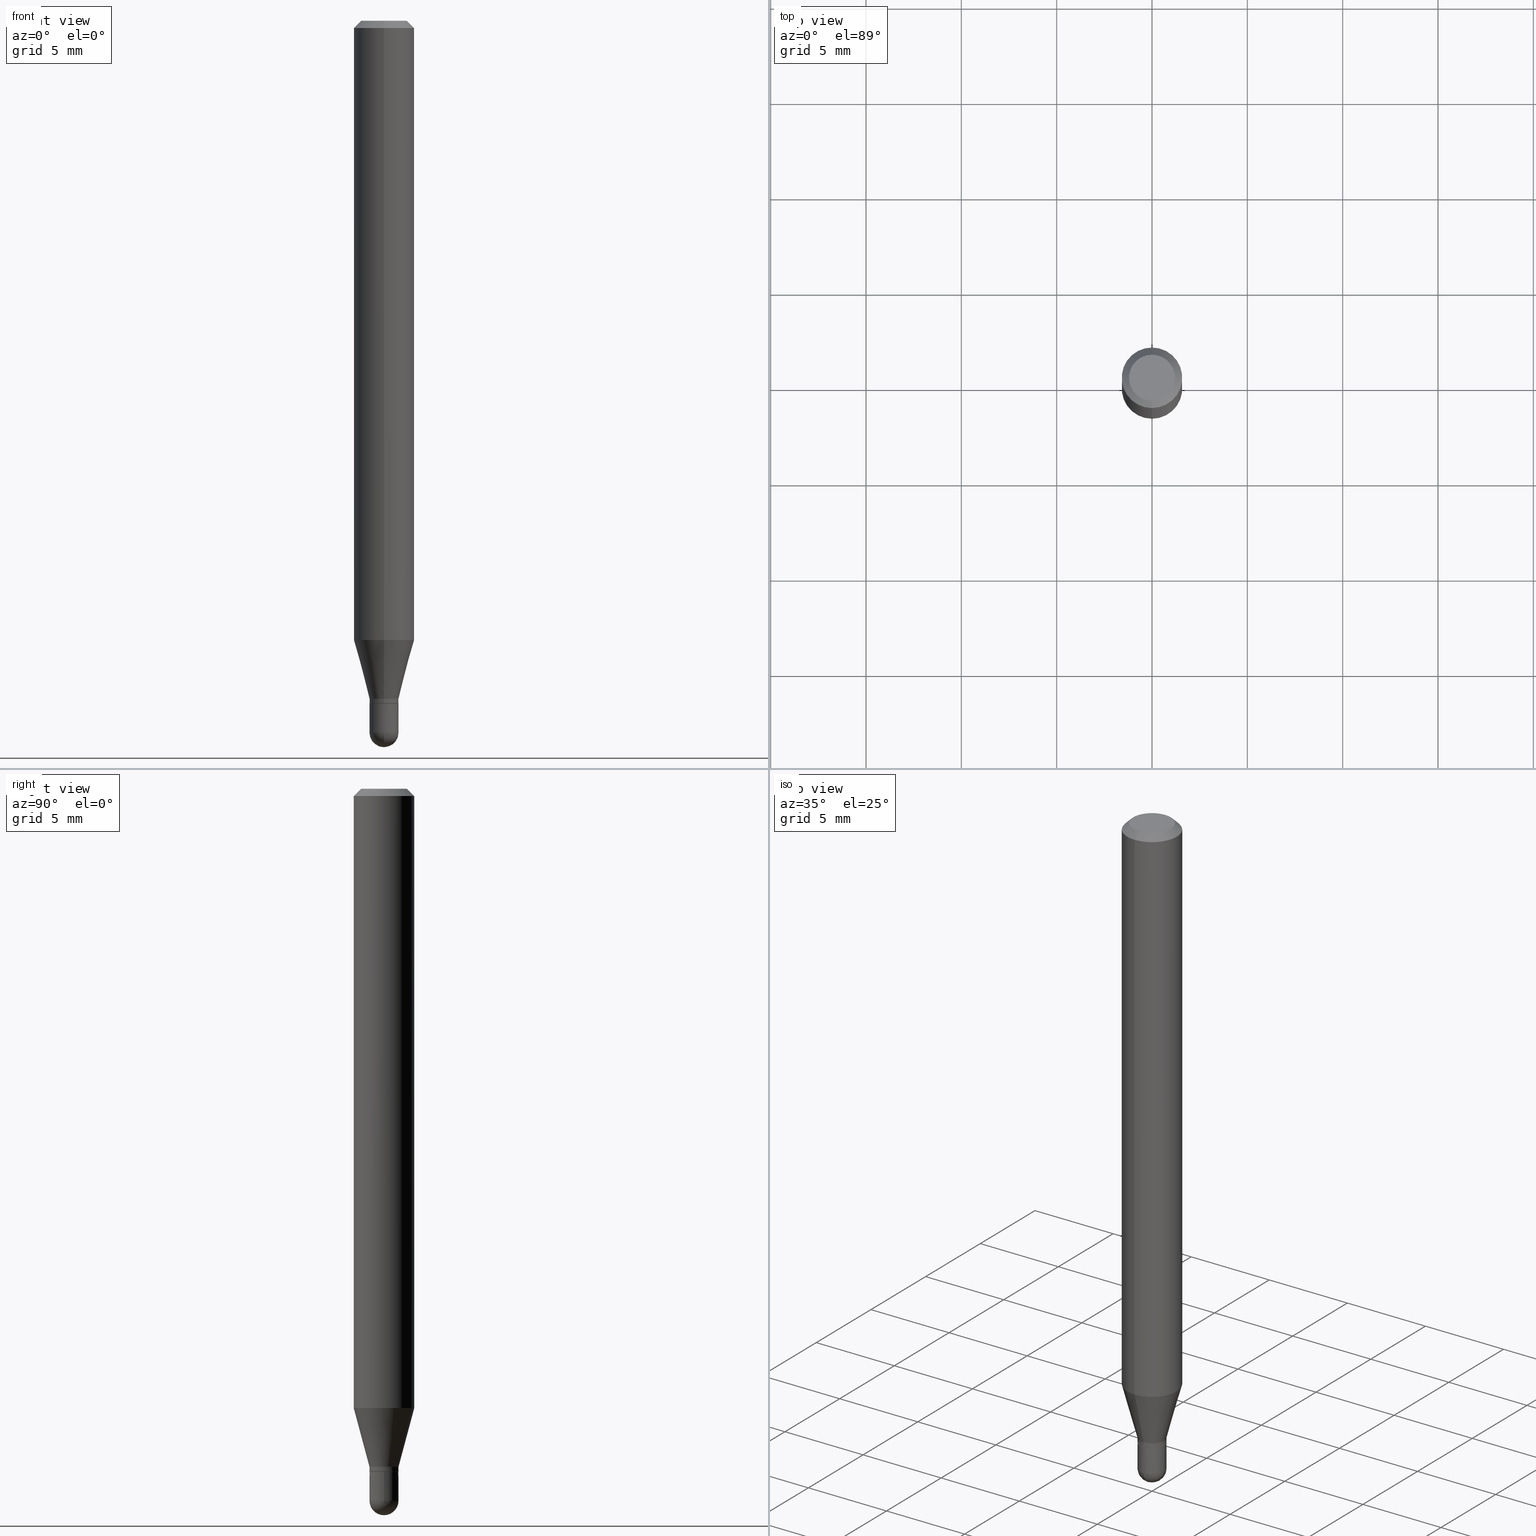
[diagram: canonical four-view strip — front | top / right | iso, engineering-drawing reading convention]
A machine part, canonical four-view strip (front | top / right | iso — engineering-drawing reading convention). The complete STEP part file that produces these views, byte-faithful:
ISO-10303-21;
HEADER;
FILE_DESCRIPTION (( 'STEP AP203' ),
    '1' );
FILE_NAME ('00795.STEP',
    '2024-03-07T18:23:55',
    ( '' ),
    ( '' ),
    'SwSTEP 2.0',
    'SolidWorks 2023',
    '' );
FILE_SCHEMA (( 'CONFIG_CONTROL_DESIGN' ));
ENDSEC;

DATA;
#1 = CIRCLE ( 'NONE', #76, 0.02999999999999992256 ) ;
#2 = AXIS2_PLACEMENT_3D ( 'NONE', #181, #137, #132 ) ;
#3 = CARTESIAN_POINT ( 'NONE',  ( -0.02999999999999999889, -4.814570307206100404E-15, -1.410000000000000364 ) ) ;
#4 = CARTESIAN_POINT ( 'NONE',  ( 2.113864638886639880E-16, 0.02949999999999507877, -1.410000000000000364 ) ) ;
#5 = PRODUCT_RELATED_PRODUCT_CATEGORY ( 'detail', '', ( #107 ) ) ;
#6 = ORIENTED_EDGE ( 'NONE', *, *, #191, .F. ) ;
#7 =( CONVERSION_BASED_UNIT ( 'INCH', #80 ) LENGTH_UNIT ( ) NAMED_UNIT ( #18 ) );
#8 = CARTESIAN_POINT ( 'NONE',  ( 3.286260152890799572E-16, 0.02999999999999531167, -1.400000000000000133 ) ) ;
#9 = CARTESIAN_POINT ( 'NONE',  ( 3.448111016721043229E-29, -4.922988687768836490E-15, -1.410000000000000364 ) ) ;
#10 = ADVANCED_FACE ( 'NONE', ( #254 ), #400, .T. ) ;
#11 = VECTOR ( 'NONE', #407, 39.37007874015748143 ) ;
#12 = CARTESIAN_POINT ( 'NONE',  ( 0.02999999999999999889, -5.132477568099424807E-15, -1.410000000000000364 ) ) ;
#13 = CC_DESIGN_DATE_AND_TIME_ASSIGNMENT ( #176, #261, ( #89 ) ) ;
#14 = APPROVAL_DATE_TIME ( #491, #106 ) ;
#15 = CYLINDRICAL_SURFACE ( 'NONE', #111, 0.03000000000000006134 ) ;
#16 = ORIENTED_EDGE ( 'NONE', *, *, #90, .T. ) ;
#17 = ADVANCED_BREP_SHAPE_REPRESENTATION ( '00795', ( #65, #244, #196 ), #317 ) ;
#18 = DIMENSIONAL_EXPONENTS ( 1.000000000000000000, 0.000000000000000000, 0.000000000000000000, 0.000000000000000000, 0.000000000000000000, 0.000000000000000000, 0.000000000000000000 ) ;
#19 = CARTESIAN_POINT ( 'NONE',  ( 3.668194037325136413E-31, -5.237235143022838535E-17, -0.01500000000000000812 ) ) ;
#20 = CIRCLE ( 'NONE', #180, 0.02999999999999997807 ) ;
#21 = PRODUCT_DEFINITION_FORMATION_WITH_SPECIFIED_SOURCE ( 'ANY', '', #107, .NOT_KNOWN. ) ;
#22 = FACE_OUTER_BOUND ( 'NONE', #175, .T. ) ;
#23 = DIRECTION ( 'NONE',  ( -6.982962677686265922E-15, -1.000000000000000000, 4.370956789862821150E-15 ) ) ;
#24 = CARTESIAN_POINT ( 'NONE',  ( 3.446879663739852411E-29, -4.921255289393791831E-15, -1.409500000000000419 ) ) ;
#25 = ORIENTED_EDGE ( 'NONE', *, *, #461, .F. ) ;
#26 = EDGE_CURVE ( 'NONE', #94, #193, #404, .T. ) ;
#27 = AXIS2_PLACEMENT_3D ( 'NONE', #492, #271, #422 ) ;
#28 = ADVANCED_FACE ( 'NONE', ( #512 ), #440, .T. ) ;
#29 = FACE_OUTER_BOUND ( 'NONE', #246, .T. ) ;
#30 = ORIENTED_EDGE ( 'NONE', *, *, #105, .F. ) ;
#31 = DIRECTION ( 'NONE',  ( -6.982962677686265922E-15, -1.000000000000000000, 0.000000000000000000 ) ) ;
#32 = VERTEX_POINT ( 'NONE', #161 ) ;
#33 = DIRECTION ( 'NONE',  ( -2.445468806185136597E-29, 3.491481338843145583E-15, 1.000000000000000000 ) ) ;
#34 = ORIENTED_EDGE ( 'NONE', *, *, #115, .F. ) ;
#35 = CARTESIAN_POINT ( 'NONE',  ( -2.094888803305551107E-16, -0.03000000000000508510, -1.400000000000000133 ) ) ;
#36 = CLOSED_SHELL ( 'NONE', ( #506, #311, #419, #414, #10 ) ) ;
#37 = ORIENTED_EDGE ( 'NONE', *, *, #501, .F. ) ;
#38 = CIRCLE ( 'NONE', #391, 0.02949999999999999845 ) ;
#39 = DIRECTION ( 'NONE',  ( -2.445468806185136597E-29, 3.491481338843145583E-15, 1.000000000000000000 ) ) ;
#40 = DIRECTION ( 'NONE',  ( -2.445468806185136877E-29, 3.491481338843145188E-15, 1.000000000000000000 ) ) ;
#41 = ORIENTED_EDGE ( 'NONE', *, *, #82, .T. ) ;
#42 = EDGE_CURVE ( 'NONE', #144, #75, #230, .T. ) ;
#43 = DATE_AND_TIME ( #357, #335 ) ;
#44 = DIRECTION ( 'NONE',  ( -2.445462691550089435E-29, 3.491490095348556460E-15, 1.000000000000000000 ) ) ;
#45 = VECTOR ( 'NONE', #119, 39.37007874015748143 ) ;
#46 = EDGE_CURVE ( 'NONE', #116, #185, #60, .T. ) ;
#47 = VECTOR ( 'NONE', #186, 39.37007874015748143 ) ;
#48 = APPROVAL_STATUS ( 'not_yet_approved' ) ;
#49 = DIRECTION ( 'NONE',  ( -6.982962677686265922E-15, -1.000000000000000000, 0.000000000000000000 ) ) ;
#50 = CARTESIAN_POINT ( 'NONE',  ( 3.592273646224612654E-29, -5.136151508496865947E-15, -1.470000000000000195 ) ) ;
#51 = DIRECTION ( 'NONE',  ( -6.982962677686266711E-15, -1.000000000000000000, 3.491490095348556460E-15 ) ) ;
#52 = AXIS2_PLACEMENT_3D ( 'NONE', #397, #147, #280 ) ;
#53 = APPROVAL_PERSON_ORGANIZATION ( #413, #149, #300 ) ;
#54 = FACE_OUTER_BOUND ( 'NONE', #458, .T. ) ;
#55 = PERSON_AND_ORGANIZATION ( #328, #287 ) ;
#56 = CARTESIAN_POINT ( 'NONE',  ( 4.364351673553919652E-16, 0.06249999999999995143, -0.01500000000000022669 ) ) ;
#57 = ORIENTED_EDGE ( 'NONE', *, *, #199, .T. ) ;
#58 = DIRECTION ( 'NONE',  ( -6.982962677686265922E-15, -1.000000000000000000, 0.000000000000000000 ) ) ;
#59 = EDGE_CURVE ( 'NONE', #32, #193, #1, .T. ) ;
#60 = CIRCLE ( 'NONE', #286, 0.02999999999999997807 ) ;
#61 = AXIS2_PLACEMENT_3D ( 'NONE', #465, #282, #459 ) ;
#62 = DIRECTION ( 'NONE',  ( 2.445462691550089435E-29, -3.491490095348556460E-15, -1.000000000000000000 ) ) ;
#63 = CYLINDRICAL_SURFACE ( 'NONE', #268, 0.03000000000000006134 ) ;
#64 = VERTEX_POINT ( 'NONE', #242 ) ;
#65 = MANIFOLD_SOLID_BREP ( 'Body-Move/Copy2[1]', #36 ) ;
#66 = CARTESIAN_POINT ( 'NONE',  ( 3.592273646224612654E-29, -5.136151508496865947E-15, -1.470000000000000195 ) ) ;
#67 = ORIENTED_EDGE ( 'NONE', *, *, #342, .F. ) ;
#68 = AXIS2_PLACEMENT_3D ( 'NONE', #156, #326, #475 ) ;
#69 = AXIS2_PLACEMENT_3D ( 'NONE', #170, #305, #453 ) ;
#70 = CC_DESIGN_APPROVAL ( #149, ( #89 ) ) ;
#71 = ORIENTED_EDGE ( 'NONE', *, *, #327, .F. ) ;
#72 = PLANE ( 'NONE',  #52 ) ;
#73 = ORIENTED_EDGE ( 'NONE', *, *, #461, .T. ) ;
#74 = LINE ( 'NONE', #394, #223 ) ;
#75 = VERTEX_POINT ( 'NONE', #8 ) ;
#76 = AXIS2_PLACEMENT_3D ( 'NONE', #206, #211, #49 ) ;
#77 = DIRECTION ( 'NONE',  ( -2.445468806185136877E-29, 3.491481338843145188E-15, 1.000000000000000000 ) ) ;
#78 = DIRECTION ( 'NONE',  ( -6.982962677686265922E-15, -1.000000000000000000, 3.491490095348556460E-15 ) ) ;
#79 = CIRCLE ( 'NONE', #472, 0.03000000000000000583 ) ;
#80 = LENGTH_MEASURE_WITH_UNIT ( LENGTH_MEASURE( 0.02539999999999999897 ), #295 );
#81 = CARTESIAN_POINT ( 'NONE',  ( 3.666920459843935532E-29, -5.239058978463439141E-15, -1.500000000000000222 ) ) ;
#82 = EDGE_CURVE ( 'NONE', #64, #235, #140, .T. ) ;
#83 = PERSON_AND_ORGANIZATION ( #328, #287 ) ;
#84 = DIRECTION ( 'NONE',  ( -2.445462691550089435E-29, 3.491490095348556460E-15, 1.000000000000000000 ) ) ;
#85 = MECHANICAL_CONTEXT ( 'NONE', #234, 'mechanical' ) ;
#86 = LINE ( 'NONE', #406, #247 ) ;
#87 = CIRCLE ( 'NONE', #380, 0.03000000000000000583 ) ;
#88 = AXIS2_PLACEMENT_3D ( 'NONE', #309, #455, #389 ) ;
#89 = SECURITY_CLASSIFICATION ( '', '', #131 ) ;
#90 = EDGE_CURVE ( 'NONE', #235, #64, #434, .T. ) ;
#91 = DIRECTION ( 'NONE',  ( -2.445462691550089435E-29, 3.491490095348556460E-15, 1.000000000000000000 ) ) ;
#92 = LINE ( 'NONE', #488, #382 ) ;
#93 = CARTESIAN_POINT ( 'NONE',  ( 0.000000000000000000, 0.000000000000000000, 0.000000000000000000 ) ) ;
#94 = VERTEX_POINT ( 'NONE', #4 ) ;
#95 = VECTOR ( 'NONE', #40, 39.37007874015748143 ) ;
#96 = APPROVAL_PERSON_ORGANIZATION ( #479, #106, #322 ) ;
#97 = DIRECTION ( 'NONE',  ( -6.982962677686265922E-15, -1.000000000000000000, 0.000000000000000000 ) ) ;
#98 = ORIENTED_EDGE ( 'NONE', *, *, #273, .F. ) ;
#99 = FACE_OUTER_BOUND ( 'NONE', #197, .T. ) ;
#100 = PRODUCT_DEFINITION ( 'UNKNOWN', '', #21, #275 ) ;
#101 = CARTESIAN_POINT ( 'NONE',  ( -0.03000000000000000583, -4.814570307206100404E-15, -1.470000000000000417 ) ) ;
#102 = ORIENTED_EDGE ( 'NONE', *, *, #386, .F. ) ;
#103 = CIRCLE ( 'NONE', #150, 0.03000000000000000583 ) ;
#104 = CARTESIAN_POINT ( 'NONE',  ( 0.03000000000000000583, -5.237222008264718177E-15, -1.470000000000000417 ) ) ;
#105 = EDGE_CURVE ( 'NONE', #498, #217, #134, .T. ) ;
#106 = APPROVAL ( #207, 'UNSPECIFIED' ) ;
#107 = PRODUCT ( '00795', '00795', '', ( #85 ) ) ;
#108 = ORIENTED_EDGE ( 'NONE', *, *, #122, .T. ) ;
#109 = FACE_OUTER_BOUND ( 'NONE', #152, .T. ) ;
#110 = ORIENTED_EDGE ( 'NONE', *, *, #214, .T. ) ;
#111 = AXIS2_PLACEMENT_3D ( 'NONE', #93, #304, #173 ) ;
#112 = CARTESIAN_POINT ( 'NONE',  ( 2.131628207280656699E-16, 0.02999999999999530820, -1.400000000000000133 ) ) ;
#113 = ORIENTED_EDGE ( 'NONE', *, *, #446, .F. ) ;
#114 = CARTESIAN_POINT ( 'NONE',  ( 2.094888803306238403E-16, 0.02999999999999485717, -1.470000000000000417 ) ) ;
#115 = EDGE_CURVE ( 'NONE', #217, #498, #204, .T. ) ;
#116 = VERTEX_POINT ( 'NONE', #81 ) ;
#117 = ORIENTED_EDGE ( 'NONE', *, *, #42, .T. ) ;
#118 = CARTESIAN_POINT ( 'NONE',  ( 3.594839145092151380E-29, -5.132477568099425596E-15, -1.470000000000000417 ) ) ;
#119 = DIRECTION ( 'NONE',  ( 5.024295867788190974E-15, 0.7071067811865681119, 0.7071067811865270336 ) ) ;
#120 = EDGE_CURVE ( 'NONE', #75, #144, #278, .T. ) ;
#121 = CC_DESIGN_APPROVAL ( #106, ( #21 ) ) ;
#122 = EDGE_CURVE ( 'NONE', #32, #144, #86, .T. ) ;
#123 = ORIENTED_EDGE ( 'NONE', *, *, #26, .T. ) ;
#124 = LINE ( 'NONE', #153, #141 ) ;
#125 = DIRECTION ( 'NONE',  ( 1.000000000000000000, -6.982962677686268288E-15, 0.000000000000000000 ) ) ;
#126 = ORIENTED_EDGE ( 'NONE', *, *, #448, .T. ) ;
#127 = DIRECTION ( 'NONE',  ( 1.000000000000000000, -6.982962677686266711E-15, 0.000000000000000000 ) ) ;
#128 = CIRCLE ( 'NONE', #296, 0.06250000000000000000 ) ;
#129 = VECTOR ( 'NONE', #377, 39.37007874015748143 ) ;
#130 = DIRECTION ( 'NONE',  ( -2.445462691550089435E-29, 3.491490095348556460E-15, 1.000000000000000000 ) ) ;
#131 = SECURITY_CLASSIFICATION_LEVEL ( 'unclassified' ) ;
#132 = DIRECTION ( 'NONE',  ( 6.982962677686265922E-15, 1.000000000000000000, -3.483106191921935554E-15 ) ) ;
#133 = DIRECTION ( 'NONE',  ( -2.445462691550089435E-29, 3.491490095348556460E-15, 1.000000000000000000 ) ) ;
#134 = CIRCLE ( 'NONE', #426, 0.02999999999999999889 ) ;
#135 = EDGE_CURVE ( 'NONE', #229, #185, #87, .T. ) ;
#136 = CARTESIAN_POINT ( 'NONE',  ( 3.448102395085626415E-29, -4.923001034441466300E-15, -1.410000000000000364 ) ) ;
#137 = DIRECTION ( 'NONE',  ( 2.445462691550089435E-29, -3.491490095348556460E-15, -1.000000000000000000 ) ) ;
#138 = DIRECTION ( 'NONE',  ( 6.982962677686265922E-15, 1.000000000000000000, 0.000000000000000000 ) ) ;
#139 = VERTEX_POINT ( 'NONE', #243 ) ;
#140 = CIRCLE ( 'NONE', #362, 0.06250000000000000000 ) ;
#141 = VECTOR ( 'NONE', #77, 39.37007874015748143 ) ;
#142 = VECTOR ( 'NONE', #410, 39.37007874015748143 ) ;
#143 = LINE ( 'NONE', #457, #95 ) ;
#144 = VERTEX_POINT ( 'NONE', #334 ) ;
#145 = CARTESIAN_POINT ( 'NONE',  ( -3.773273898774340269E-16, -0.04749999999999999362, 1.569858758712323224E-16 ) ) ;
#146 = EDGE_LOOP ( 'NONE', ( #6, #471, #108, #430 ) ) ;
#147 = DIRECTION ( 'NONE',  ( -2.445462691550089155E-29, 3.491490095348556460E-15, 1.000000000000000000 ) ) ;
#148 = ORIENTED_EDGE ( 'NONE', *, *, #396, .F. ) ;
#149 = APPROVAL ( #218, 'UNSPECIFIED' ) ;
#150 = AXIS2_PLACEMENT_3D ( 'NONE', #350, #33, #352 ) ;
#151 = CARTESIAN_POINT ( 'NONE',  ( -2.059973989917103533E-16, -0.02950000000000492159, -1.410000000000000364 ) ) ;
#152 = EDGE_LOOP ( 'NONE', ( #187, #460 ) ) ;
#153 = CARTESIAN_POINT ( 'NONE',  ( -0.03000000000000000583, 2.131628207280300972E-16, -1.475680527076471882E-30 ) ) ;
#154 = ORIENTED_EDGE ( 'NONE', *, *, #386, .T. ) ;
#155 = DATE_TIME_ROLE ( 'creation_date' ) ;
#156 = CARTESIAN_POINT ( 'NONE',  ( 3.423647768170125602E-29, -4.888086133487979280E-15, -1.400000000000000133 ) ) ;
#157 = EDGE_CURVE ( 'NONE', #139, #237, #128, .T. ) ;
#158 = AXIS2_PLACEMENT_3D ( 'NONE', #510, #91, #78 ) ;
#159 = DIRECTION ( 'NONE',  ( 0.000000000000000000, 0.000000000000000000, 1.000000000000000000 ) ) ;
#160 = CONICAL_SURFACE ( 'NONE', #420, 0.06250000000000000000, 0.7853981633974483900 ) ;
#161 = CARTESIAN_POINT ( 'NONE',  ( -2.094888803305537056E-16, -0.03000000000000494632, -1.409500000000000419 ) ) ;
#162 = DIRECTION ( 'NONE',  ( -7.105427357601001070E-15, -1.000000000000000000, 0.000000000000000000 ) ) ;
#163 = CALENDAR_DATE ( 2024, 7, 3 ) ;
#164 = DIRECTION ( 'NONE',  ( -2.445462691550089435E-29, 3.491490095348556460E-15, 1.000000000000000000 ) ) ;
#165 = COORDINATED_UNIVERSAL_TIME_OFFSET ( 5, 0, .BEHIND. ) ;
#166 = ADVANCED_FACE ( 'NONE', ( #182 ), #249, .T. ) ;
#167 = DIRECTION ( 'NONE',  ( -6.982962677686265922E-15, -1.000000000000000000, 0.000000000000000000 ) ) ;
#168 = AXIS2_PLACEMENT_3D ( 'NONE', #208, #402, #290 ) ;
#169 = CONICAL_SURFACE ( 'NONE', #464, 0.03000000000000019665, 0.2617993877991510177 ) ;
#170 = CARTESIAN_POINT ( 'NONE',  ( 0.000000000000000000, 0.000000000000000000, 0.000000000000000000 ) ) ;
#171 = DATE_AND_TIME ( #375, #324 ) ;
#172 = EDGE_CURVE ( 'NONE', #94, #424, #38, .T. ) ;
#173 = DIRECTION ( 'NONE',  ( -6.982962677686265922E-15, -1.000000000000000000, 3.491490095348556460E-15 ) ) ;
#174 = CC_DESIGN_PERSON_AND_ORGANIZATION_ASSIGNMENT ( #55, #442, ( #89 ) ) ;
#175 = EDGE_LOOP ( 'NONE', ( #281, #384, #41, #408 ) ) ;
#176 = DATE_AND_TIME ( #337, #259 ) ;
#177 = LINE ( 'NONE', #302, #142 ) ;
#178 = ORIENTED_EDGE ( 'NONE', *, *, #385, .T. ) ;
#179 = AXIS2_PLACEMENT_3D ( 'NONE', #293, #438, #167 ) ;
#180 = AXIS2_PLACEMENT_3D ( 'NONE', #188, #192, #314 ) ;
#181 = CARTESIAN_POINT ( 'NONE',  ( 3.668194037325136413E-31, -5.237235143022838535E-17, -0.01500000000000000812 ) ) ;
#182 = FACE_OUTER_BOUND ( 'NONE', #478, .T. ) ;
#183 = EDGE_LOOP ( 'NONE', ( #505, #227, #154, #98 ) ) ;
#184 = LINE ( 'NONE', #112, #194 ) ;
#185 = VERTEX_POINT ( 'NONE', #418 ) ;
#186 = DIRECTION ( 'NONE',  ( -2.445462691550089435E-29, 3.491490095348556460E-15, 1.000000000000000000 ) ) ;
#187 = ORIENTED_EDGE ( 'NONE', *, *, #115, .T. ) ;
#188 = CARTESIAN_POINT ( 'NONE',  ( 3.592273646224612654E-29, -5.136151508496865947E-15, -1.470000000000000195 ) ) ;
#189 = EDGE_CURVE ( 'NONE', #390, #353, #363, .T. ) ;
#190 = ORIENTED_EDGE ( 'NONE', *, *, #396, .T. ) ;
#191 = EDGE_CURVE ( 'NONE', #193, #75, #92, .T. ) ;
#192 = DIRECTION ( 'NONE',  ( 1.000000000000000000, -6.982962677686265922E-15, 4.883557194083112340E-29 ) ) ;
#193 = VERTEX_POINT ( 'NONE', #412 ) ;
#194 = VECTOR ( 'NONE', #423, 39.37007874015748143 ) ;
#195 = DIRECTION ( 'NONE',  ( 2.438088387897960049E-29, -3.491481338843145188E-15, -1.000000000000000000 ) ) ;
#196 = AXIS2_PLACEMENT_3D ( 'NONE', #467, #159, #325 ) ;
#197 = EDGE_LOOP ( 'NONE', ( #57, #123, #437, #25 ) ) ;
#198 = COORDINATED_UNIVERSAL_TIME_OFFSET ( 5, 0, .BEHIND. ) ;
#199 = EDGE_CURVE ( 'NONE', #424, #94, #449, .T. ) ;
#200 = DIRECTION ( 'NONE',  ( 1.000000000000000000, -6.982962677686268288E-15, 0.000000000000000000 ) ) ;
#201 = DIRECTION ( 'NONE',  ( 1.000000000000000000, -6.982962677686266711E-15, 0.000000000000000000 ) ) ;
#202 = ORIENTED_EDGE ( 'NONE', *, *, #376, .F. ) ;
#203 = APPLICATION_CONTEXT ( 'configuration controlled 3d designs of mechanical parts and assemblies' ) ;
#204 = CIRCLE ( 'NONE', #489, 0.02999999999999999889 ) ;
#205 = DIRECTION ( 'NONE',  ( -2.445468806185136597E-29, 3.491481338843145583E-15, 1.000000000000000000 ) ) ;
#206 = CARTESIAN_POINT ( 'NONE',  ( 3.446879663739852411E-29, -4.921255289393791831E-15, -1.409500000000000419 ) ) ;
#207 = APPROVAL_STATUS ( 'not_yet_approved' ) ;
#208 = CARTESIAN_POINT ( 'NONE',  ( 0.000000000000000000, 0.000000000000000000, 0.000000000000000000 ) ) ;
#209 = EDGE_CURVE ( 'NONE', #390, #64, #177, .T. ) ;
#210 = APPROVAL_DATE_TIME ( #364, #480 ) ;
#211 = DIRECTION ( 'NONE',  ( -2.445462691550089435E-29, 3.491490095348556460E-15, 1.000000000000000000 ) ) ;
#212 = FACE_OUTER_BOUND ( 'NONE', #333, .T. ) ;
#213 = AXIS2_PLACEMENT_3D ( 'NONE', #255, #451, #219 ) ;
#214 = EDGE_CURVE ( 'NONE', #353, #235, #372, .T. ) ;
#215 = ADVANCED_FACE ( 'NONE', ( #212 ), #316, .T. ) ;
#216 = CYLINDRICAL_SURFACE ( 'NONE', #69, 0.06250000000000000000 ) ;
#217 = VERTEX_POINT ( 'NONE', #12 ) ;
#218 = APPROVAL_STATUS ( 'not_yet_approved' ) ;
#219 = DIRECTION ( 'NONE',  ( 1.000000000000000000, -6.982962677686266711E-15, 0.000000000000000000 ) ) ;
#220 = EDGE_LOOP ( 'NONE', ( #277, #270, #73, #113 ) ) ;
#221 = CARTESIAN_POINT ( 'NONE',  ( 4.440892098500936776E-16, 0.06249999999999551747, -1.278708348754013402 ) ) ;
#222 = ADVANCED_FACE ( 'NONE', ( #99 ), #308, .T. ) ;
#223 = VECTOR ( 'NONE', #312, 39.37007874015748143 ) ;
#224 = DIRECTION ( 'NONE',  ( -2.445462691550089435E-29, 3.491490095348556460E-15, 1.000000000000000000 ) ) ;
#225 = EDGE_LOOP ( 'NONE', ( #432, #190, #468, #67 ) ) ;
#226 = DIRECTION ( 'NONE',  ( -2.445462691550089435E-29, 3.491490095348556460E-15, 1.000000000000000000 ) ) ;
#227 = ORIENTED_EDGE ( 'NONE', *, *, #120, .T. ) ;
#228 = FACE_OUTER_BOUND ( 'NONE', #500, .T. ) ;
#229 = VERTEX_POINT ( 'NONE', #101 ) ;
#230 = CIRCLE ( 'NONE', #68, 0.03000000000000019665 ) ;
#231 = AXIS2_PLACEMENT_3D ( 'NONE', #415, #486, #58 ) ;
#232 = ADVANCED_FACE ( 'NONE', ( #54 ), #216, .T. ) ;
#233 = DIRECTION ( 'NONE',  ( -2.445462691550089435E-29, 3.491490095348556460E-15, 1.000000000000000000 ) ) ;
#234 = APPLICATION_CONTEXT ( 'configuration controlled 3d designs of mechanical parts and assemblies' ) ;
#235 = VERTEX_POINT ( 'NONE', #265 ) ;
#236 = DIRECTION ( 'NONE',  ( -1.807323732225335267E-15, -0.2588190451025189631, 0.9659258262890687563 ) ) ;
#237 = VERTEX_POINT ( 'NONE', #221 ) ;
#238 = CARTESIAN_POINT ( 'NONE',  ( 2.094888803306224597E-16, 0.02999999999999507921, -1.410000000000000364 ) ) ;
#239 = ORIENTED_EDGE ( 'NONE', *, *, #327, .T. ) ;
#240 = CIRCLE ( 'NONE', #88, 0.04749999999999999362 ) ;
#241 = PERSON_AND_ORGANIZATION_ROLE ( 'design_owner' ) ;
#242 = CARTESIAN_POINT ( 'NONE',  ( -4.364351673553912750E-16, -0.06250000000000005551, -0.01499999999999979128 ) ) ;
#243 = CARTESIAN_POINT ( 'NONE',  ( -4.364351673553605094E-16, -0.06250000000000449640, -1.278708348754012736 ) ) ;
#244 = MANIFOLD_SOLID_BREP ( 'Body-Move/Copy2[2]', #405 ) ;
#245 = APPLICATION_PROTOCOL_DEFINITION ( 'international standard', 'config_control_design', 1994, #234 ) ;
#246 = EDGE_LOOP ( 'NONE', ( #202, #263, #435, #398 ) ) ;
#247 = VECTOR ( 'NONE', #164, 39.37007874015748143 ) ;
#248 = FACE_OUTER_BOUND ( 'NONE', #454, .T. ) ;
#249 = CONICAL_SURFACE ( 'NONE', #231, 0.03000000000000019665, 0.2617993877991510177 ) ;
#250 = DIRECTION ( 'NONE',  ( -6.982962677686265922E-15, -1.000000000000000000, 3.483106191921935554E-15 ) ) ;
#251 = CC_DESIGN_APPROVAL ( #480, ( #100 ) ) ;
#252 = ADVANCED_FACE ( 'NONE', ( #336 ), #494, .F. ) ;
#253 =( NAMED_UNIT ( * ) SI_UNIT ( $, .STERADIAN. ) SOLID_ANGLE_UNIT ( ) );
#254 = FACE_OUTER_BOUND ( 'NONE', #388, .T. ) ;
#255 = CARTESIAN_POINT ( 'NONE',  ( 3.594839145092151380E-29, -5.132477568099425596E-15, -1.470000000000000417 ) ) ;
#256 = ADVANCED_FACE ( 'NONE', ( #22 ), #160, .T. ) ;
#257 = CARTESIAN_POINT ( 'NONE',  ( 3.127033560251559026E-29, -4.464597534514144179E-15, -1.278708348754013180 ) ) ;
#258 = AXIS2_PLACEMENT_3D ( 'NONE', #374, #381, #301 ) ;
#259 = LOCAL_TIME ( 13, 23, 55.00000000000000000, #165 ) ;
#260 = ORIENTED_EDGE ( 'NONE', *, *, #342, .T. ) ;
#261 = DATE_TIME_ROLE ( 'classification_date' ) ;
#262 = CARTESIAN_POINT ( 'NONE',  ( 2.166656384593696533E-46, -3.093426586703523285E-32, -8.859903657824081740E-18 ) ) ;
#263 = ORIENTED_EDGE ( 'NONE', *, *, #46, .T. ) ;
#264 = DIRECTION ( 'NONE',  ( -2.445462691550089435E-29, 3.491490095348556460E-15, 1.000000000000000000 ) ) ;
#265 = CARTESIAN_POINT ( 'NONE',  ( 4.440892098500940720E-16, 0.06249999999999995143, -0.01500000000000022669 ) ) ;
#266 = ORIENTED_EDGE ( 'NONE', *, *, #448, .F. ) ;
#267 = ADVANCED_FACE ( 'NONE', ( #298 ), #15, .T. ) ;
#268 = AXIS2_PLACEMENT_3D ( 'NONE', #425, #226, #387 ) ;
#269 = PLANE ( 'NONE',  #354 ) ;
#270 = ORIENTED_EDGE ( 'NONE', *, *, #172, .T. ) ;
#271 = DIRECTION ( 'NONE',  ( -2.445462691550089435E-29, 3.491490095348556460E-15, 1.000000000000000000 ) ) ;
#272 = ORIENTED_EDGE ( 'NONE', *, *, #274, .T. ) ;
#273 = EDGE_CURVE ( 'NONE', #237, #139, #482, .T. ) ;
#274 = EDGE_CURVE ( 'NONE', #360, #229, #490, .T. ) ;
#275 = DESIGN_CONTEXT ( 'detailed design', #203, 'design' ) ;
#276 = DIRECTION ( 'NONE',  ( -1.000000000000000000, 6.982962677686265922E-15, -4.876176775795935793E-29 ) ) ;
#277 = ORIENTED_EDGE ( 'NONE', *, *, #26, .F. ) ;
#278 = CIRCLE ( 'NONE', #179, 0.03000000000000019665 ) ;
#279 = CONICAL_SURFACE ( 'NONE', #27, 0.02949999999999999845, 0.7853981633974739252 ) ;
#280 = DIRECTION ( 'NONE',  ( -6.982962677686265922E-15, -1.000000000000000000, 3.491490095348556460E-15 ) ) ;
#281 = ORIENTED_EDGE ( 'NONE', *, *, #189, .F. ) ;
#282 = DIRECTION ( 'NONE',  ( -1.000000000000000000, 6.982962677686265922E-15, -4.883557194083112340E-29 ) ) ;
#283 = ORIENTED_EDGE ( 'NONE', *, *, #189, .T. ) ;
#284 = PERSON_AND_ORGANIZATION ( #328, #287 ) ;
#285 = ORIENTED_EDGE ( 'NONE', *, *, #172, .F. ) ;
#286 = AXIS2_PLACEMENT_3D ( 'NONE', #50, #288, #162 ) ;
#287 = ORGANIZATION ( 'UNSPECIFIED', 'UNSPECIFIED', '' ) ;
#288 = DIRECTION ( 'NONE',  ( -1.000000000000000000, 7.105427357601001070E-15, -4.926315508542082329E-29 ) ) ;
#289 = APPLICATION_PROTOCOL_DEFINITION ( 'international standard', 'config_control_design', 1994, #203 ) ;
#290 = DIRECTION ( 'NONE',  ( 1.000000000000000000, -6.982962677686266711E-15, 4.876176775795935793E-29 ) ) ;
#291 = PRODUCT_DEFINITION_SHAPE ( 'NONE', 'NONE',  #100 ) ;
#292 = CC_DESIGN_DATE_AND_TIME_ASSIGNMENT ( #43, #155, ( #100 ) ) ;
#293 = CARTESIAN_POINT ( 'NONE',  ( 3.423647768170125602E-29, -4.888086133487979280E-15, -1.400000000000000133 ) ) ;
#294 = ORIENTED_EDGE ( 'NONE', *, *, #122, .F. ) ;
#295 =( LENGTH_UNIT ( ) NAMED_UNIT ( * ) SI_UNIT ( $, .METRE. ) );
#296 = AXIS2_PLACEMENT_3D ( 'NONE', #484, #130, #23 ) ;
#297 = CARTESIAN_POINT ( 'NONE',  ( 2.096101070492640071E-16, 0.02949999999999507877, -1.410000000000000364 ) ) ;
#298 = FACE_OUTER_BOUND ( 'NONE', #146, .T. ) ;
#299 = ADVANCED_FACE ( 'NONE', ( #339 ), #279, .T. ) ;
#300 = APPROVAL_ROLE ( '' ) ;
#301 = DIRECTION ( 'NONE',  ( 6.982962677686265922E-15, 1.000000000000000000, -3.491490095348556460E-15 ) ) ;
#302 = CARTESIAN_POINT ( 'NONE',  ( -4.287811248607203282E-16, -0.06250000000000005551, -0.01499999999999979128 ) ) ;
#303 = AXIS2_PLACEMENT_3D ( 'NONE', #136, #417, #383 ) ;
#304 = DIRECTION ( 'NONE',  ( -2.445462691550089435E-29, 3.491490095348556460E-15, 1.000000000000000000 ) ) ;
#305 = DIRECTION ( 'NONE',  ( -2.445462691550089435E-29, 3.491490095348556460E-15, 1.000000000000000000 ) ) ;
#306 = EDGE_CURVE ( 'NONE', #75, #237, #184, .T. ) ;
#307 = CARTESIAN_POINT ( 'NONE',  ( -4.364351673553916201E-16, -0.06250000000000000000, 2.182181309592847787E-16 ) ) ;
#308 = CONICAL_SURFACE ( 'NONE', #303, 0.02949999999999999845, 0.7853981633974739252 ) ;
#309 = CARTESIAN_POINT ( 'NONE',  ( 2.166656384593696533E-46, -3.093426586703523285E-32, -8.859903657824081740E-18 ) ) ;
#310 = ORIENTED_EDGE ( 'NONE', *, *, #90, .F. ) ;
#311 = ADVANCED_FACE ( 'NONE', ( #29 ), #429, .T. ) ;
#312 = DIRECTION ( 'NONE',  ( -2.445462691550089435E-29, 3.491490095348556460E-15, 1.000000000000000000 ) ) ;
#313 = ORIENTED_EDGE ( 'NONE', *, *, #157, .F. ) ;
#314 = DIRECTION ( 'NONE',  ( 6.982962677686265922E-15, 1.000000000000000000, 0.000000000000000000 ) ) ;
#315 = ORIENTED_EDGE ( 'NONE', *, *, #501, .T. ) ;
#316 = CONICAL_SURFACE ( 'NONE', #2, 0.06250000000000000000, 0.7853981633974483900 ) ;
#317 =( GEOMETRIC_REPRESENTATION_CONTEXT ( 3 ) GLOBAL_UNCERTAINTY_ASSIGNED_CONTEXT ( ( #470 ) ) GLOBAL_UNIT_ASSIGNED_CONTEXT ( ( #7, #320, #253 ) ) REPRESENTATION_CONTEXT ( 'NONE', 'WORKASPACE' ) );
#318 = SPHERICAL_SURFACE ( 'NONE', #61, 0.02999999999999997807 ) ;
#319 = ORIENTED_EDGE ( 'NONE', *, *, #376, .T. ) ;
#320 =( NAMED_UNIT ( * ) PLANE_ANGLE_UNIT ( ) SI_UNIT ( $, .RADIAN. ) );
#321 = ORIENTED_EDGE ( 'NONE', *, *, #306, .T. ) ;
#322 = APPROVAL_ROLE ( '' ) ;
#323 = ORIENTED_EDGE ( 'NONE', *, *, #199, .F. ) ;
#324 = LOCAL_TIME ( 13, 23, 55.00000000000000000, #411 ) ;
#325 = DIRECTION ( 'NONE',  ( 1.000000000000000000, 0.000000000000000000, 0.000000000000000000 ) ) ;
#326 = DIRECTION ( 'NONE',  ( -2.445462691550089435E-29, 3.491490095348556460E-15, 1.000000000000000000 ) ) ;
#327 = EDGE_CURVE ( 'NONE', #395, #360, #103, .T. ) ;
#328 = PERSON ( 'UNSPECIFIED', 'UNSPECIFIED', 'UNSPECIFIED', ('UNSPECIFIED'), ('UNSPECIFIED'), ('UNSPECIFIED') ) ;
#329 = CC_DESIGN_PERSON_AND_ORGANIZATION_ASSIGNMENT ( #403, #399, ( #100 ) ) ;
#330 = DIRECTION ( 'NONE',  ( 1.000000000000000000, -6.982962677686266711E-15, 4.876176775795935793E-29 ) ) ;
#331 = CARTESIAN_POINT ( 'NONE',  ( 3.448111016721043229E-29, -4.922988687768836490E-15, -1.410000000000000364 ) ) ;
#332 = APPROVAL_ROLE ( '' ) ;
#333 = EDGE_LOOP ( 'NONE', ( #351, #508, #110, #16 ) ) ;
#334 = CARTESIAN_POINT ( 'NONE',  ( -2.094888803305551107E-16, -0.03000000000000508510, -1.400000000000000133 ) ) ;
#335 = LOCAL_TIME ( 13, 23, 55.00000000000000000, #198 ) ;
#336 = FACE_OUTER_BOUND ( 'NONE', #463, .T. ) ;
#337 = CALENDAR_DATE ( 2024, 7, 3 ) ;
#338 = DIRECTION ( 'NONE',  ( -2.445462691550089435E-29, 3.491490095348556460E-15, 1.000000000000000000 ) ) ;
#339 = FACE_OUTER_BOUND ( 'NONE', #220, .T. ) ;
#340 = AXIS2_PLACEMENT_3D ( 'NONE', #262, #224, #51 ) ;
#341 = LOCAL_TIME ( 13, 23, 55.00000000000000000, #366 ) ;
#342 = EDGE_CURVE ( 'NONE', #139, #64, #431, .T. ) ;
#343 = DIRECTION ( 'NONE',  ( -6.982962677686265922E-15, -1.000000000000000000, 0.000000000000000000 ) ) ;
#344 = CARTESIAN_POINT ( 'NONE',  ( 3.448102395085626415E-29, -4.923001034441466300E-15, -1.410000000000000364 ) ) ;
#345 = DIRECTION ( 'NONE',  ( -2.445462691550089435E-29, 3.491490095348556460E-15, 1.000000000000000000 ) ) ;
#346 = ORIENTED_EDGE ( 'NONE', *, *, #191, .T. ) ;
#347 = AXIS2_PLACEMENT_3D ( 'NONE', #24, #345, #497 ) ;
#348 = DIRECTION ( 'NONE',  ( -1.000000000000000000, 6.982962677686265922E-15, -4.883557194083112340E-29 ) ) ;
#349 = ORIENTED_EDGE ( 'NONE', *, *, #59, .T. ) ;
#350 = CARTESIAN_POINT ( 'NONE',  ( 3.594839145092151380E-29, -5.132477568099425596E-15, -1.470000000000000417 ) ) ;
#351 = ORIENTED_EDGE ( 'NONE', *, *, #209, .F. ) ;
#352 = DIRECTION ( 'NONE',  ( 1.000000000000000000, -6.982962677686266711E-15, 0.000000000000000000 ) ) ;
#353 = VERTEX_POINT ( 'NONE', #462 ) ;
#354 = AXIS2_PLACEMENT_3D ( 'NONE', #238, #195, #276 ) ;
#355 = FACE_OUTER_BOUND ( 'NONE', #378, .T. ) ;
#356 = ORIENTED_EDGE ( 'NONE', *, *, #273, .T. ) ;
#357 = CALENDAR_DATE ( 2024, 7, 3 ) ;
#358 = DIRECTION ( 'NONE',  ( -2.445468806185136597E-29, 3.491481338843145583E-15, 1.000000000000000000 ) ) ;
#359 = ADVANCED_FACE ( 'NONE', ( #392 ), #169, .T. ) ;
#360 = VERTEX_POINT ( 'NONE', #114 ) ;
#361 = ADVANCED_FACE ( 'NONE', ( #228 ), #72, .F. ) ;
#362 = AXIS2_PLACEMENT_3D ( 'NONE', #481, #44, #250 ) ;
#363 = CIRCLE ( 'NONE', #340, 0.04749999999999999362 ) ;
#364 = DATE_AND_TIME ( #436, #456 ) ;
#365 = DIRECTION ( 'NONE',  ( -6.982962677686265922E-15, -1.000000000000000000, 3.483106191921935554E-15 ) ) ;
#366 = COORDINATED_UNIVERSAL_TIME_OFFSET ( 5, 0, .BEHIND. ) ;
#367 = CARTESIAN_POINT ( 'NONE',  ( 3.594839145092151380E-29, -5.132477568099425596E-15, -1.470000000000000417 ) ) ;
#368 = PERSON_AND_ORGANIZATION ( #328, #287 ) ;
#369 = ORIENTED_EDGE ( 'NONE', *, *, #487, .T. ) ;
#370 = AXIS2_PLACEMENT_3D ( 'NONE', #344, #493, #97 ) ;
#371 = AXIS2_PLACEMENT_3D ( 'NONE', #66, #348, #138 ) ;
#372 = LINE ( 'NONE', #56, #129 ) ;
#373 = APPROVAL_DATE_TIME ( #171, #149 ) ;
#374 = CARTESIAN_POINT ( 'NONE',  ( 3.316907271900976096E-16, 0.04749999999999999362, -1.702757313579684658E-16 ) ) ;
#375 = CALENDAR_DATE ( 2024, 7, 3 ) ;
#376 = EDGE_CURVE ( 'NONE', #116, #360, #20, .T. ) ;
#377 = DIRECTION ( 'NONE',  ( 4.937700262164548042E-15, 0.7071067811865451302, -0.7071067811865499042 ) ) ;
#378 = EDGE_LOOP ( 'NONE', ( #349, #346, #416, #294 ) ) ;
#379 = CC_DESIGN_PERSON_AND_ORGANIZATION_ASSIGNMENT ( #284, #241, ( #107 ) ) ;
#380 = AXIS2_PLACEMENT_3D ( 'NONE', #367, #358, #127 ) ;
#381 = DIRECTION ( 'NONE',  ( 2.445462691550089155E-29, -3.491490095348556460E-15, -1.000000000000000000 ) ) ;
#382 = VECTOR ( 'NONE', #338, 39.37007874015748143 ) ;
#383 = DIRECTION ( 'NONE',  ( -6.982962677686265922E-15, -1.000000000000000000, 0.000000000000000000 ) ) ;
#384 = ORIENTED_EDGE ( 'NONE', *, *, #209, .T. ) ;
#385 = EDGE_CURVE ( 'NONE', #353, #390, #240, .T. ) ;
#386 = EDGE_CURVE ( 'NONE', #144, #139, #499, .T. ) ;
#387 = DIRECTION ( 'NONE',  ( -6.982962677686265922E-15, -1.000000000000000000, 3.491490095348556460E-15 ) ) ;
#388 = EDGE_LOOP ( 'NONE', ( #37, #466, #369, #126, #30 ) ) ;
#389 = DIRECTION ( 'NONE',  ( -6.982962677686266711E-15, -1.000000000000000000, 3.491490095348556460E-15 ) ) ;
#390 = VERTEX_POINT ( 'NONE', #145 ) ;
#391 = AXIS2_PLACEMENT_3D ( 'NONE', #443, #264, #343 ) ;
#392 = FACE_OUTER_BOUND ( 'NONE', #183, .T. ) ;
#393 = ORIENTED_EDGE ( 'NONE', *, *, #46, .F. ) ;
#394 = CARTESIAN_POINT ( 'NONE',  ( 4.440892098500625669E-16, 0.06250000000000000000, -2.182181309592847787E-16 ) ) ;
#395 = VERTEX_POINT ( 'NONE', #104 ) ;
#396 = EDGE_CURVE ( 'NONE', #237, #235, #74, .T. ) ;
#397 = CARTESIAN_POINT ( 'NONE',  ( 3.448102395085626415E-29, -4.923001034441466300E-15, -1.410000000000000364 ) ) ;
#398 = ORIENTED_EDGE ( 'NONE', *, *, #274, .F. ) ;
#399 = PERSON_AND_ORGANIZATION_ROLE ( 'creator' ) ;
#400 = CYLINDRICAL_SURFACE ( 'NONE', #168, 0.03000000000000000583 ) ;
#401 = LINE ( 'NONE', #476, #11 ) ;
#402 = DIRECTION ( 'NONE',  ( -2.445468806185136597E-29, 3.491481338843145583E-15, 1.000000000000000000 ) ) ;
#403 = PERSON_AND_ORGANIZATION ( #328, #287 ) ;
#404 = LINE ( 'NONE', #297, #45 ) ;
#405 = CLOSED_SHELL ( 'NONE', ( #441, #222, #256, #28, #166, #359, #232, #215, #252, #361, #299, #267 ) ) ;
#406 = CARTESIAN_POINT ( 'NONE',  ( -2.094888803305884155E-16, -0.03000000000000006134, 1.047447028604569063E-16 ) ) ;
#407 = DIRECTION ( 'NONE',  ( -4.937700262164674260E-15, -0.7071067811865632269, 0.7071067811865319186 ) ) ;
#408 = ORIENTED_EDGE ( 'NONE', *, *, #214, .F. ) ;
#409 = PERSON_AND_ORGANIZATION ( #328, #287 ) ;
#410 = DIRECTION ( 'NONE',  ( -4.851104656540964275E-15, -0.7071067811865500152, -0.7071067811865450192 ) ) ;
#411 = COORDINATED_UNIVERSAL_TIME_OFFSET ( 5, 0, .BEHIND. ) ;
#412 = CARTESIAN_POINT ( 'NONE',  ( 2.131628207280632047E-16, 0.02999999999999489880, -1.409500000000000419 ) ) ;
#413 = PERSON_AND_ORGANIZATION ( #328, #287 ) ;
#414 = ADVANCED_FACE ( 'NONE', ( #504 ), #318, .T. ) ;
#415 = CARTESIAN_POINT ( 'NONE',  ( 3.423647768170125602E-29, -4.888086133487979280E-15, -1.400000000000000133 ) ) ;
#416 = ORIENTED_EDGE ( 'NONE', *, *, #42, .F. ) ;
#417 = DIRECTION ( 'NONE',  ( -2.445462691550089435E-29, 3.491490095348556460E-15, 1.000000000000000000 ) ) ;
#418 = CARTESIAN_POINT ( 'NONE',  ( -2.131628207279940561E-16, -0.03000000000000512673, -1.470000000000000417 ) ) ;
#419 = ADVANCED_FACE ( 'NONE', ( #109 ), #269, .F. ) ;
#420 = AXIS2_PLACEMENT_3D ( 'NONE', #19, #62, #445 ) ;
#421 = AXIS2_PLACEMENT_3D ( 'NONE', #507, #474, #330 ) ;
#422 = DIRECTION ( 'NONE',  ( -6.982962677686265922E-15, -1.000000000000000000, 0.000000000000000000 ) ) ;
#423 = DIRECTION ( 'NONE',  ( 1.839019923739605443E-15, 0.2588190451025256800, 0.9659258262890669799 ) ) ;
#424 = VERTEX_POINT ( 'NONE', #151 ) ;
#425 = CARTESIAN_POINT ( 'NONE',  ( 0.000000000000000000, 0.000000000000000000, 0.000000000000000000 ) ) ;
#426 = AXIS2_PLACEMENT_3D ( 'NONE', #331, #39, #200 ) ;
#427 = EDGE_LOOP ( 'NONE', ( #393, #319, #71, #503 ) ) ;
#428 = AXIS2_PLACEMENT_3D ( 'NONE', #257, #133, #452 ) ;
#429 = SPHERICAL_SURFACE ( 'NONE', #371, 0.02999999999999997807 ) ;
#430 = ORIENTED_EDGE ( 'NONE', *, *, #120, .F. ) ;
#431 = LINE ( 'NONE', #307, #47 ) ;
#432 = ORIENTED_EDGE ( 'NONE', *, *, #157, .T. ) ;
#433 = CARTESIAN_POINT ( 'NONE',  ( 3.668194037325136413E-31, -5.237235143022838535E-17, -0.01500000000000000812 ) ) ;
#434 = CIRCLE ( 'NONE', #495, 0.06250000000000000000 ) ;
#435 = ORIENTED_EDGE ( 'NONE', *, *, #135, .F. ) ;
#436 = CALENDAR_DATE ( 2024, 7, 3 ) ;
#437 = ORIENTED_EDGE ( 'NONE', *, *, #59, .F. ) ;
#438 = DIRECTION ( 'NONE',  ( -2.445462691550089435E-29, 3.491490095348556460E-15, 1.000000000000000000 ) ) ;
#439 = VECTOR ( 'NONE', #236, 39.37007874015748854 ) ;
#440 = CYLINDRICAL_SURFACE ( 'NONE', #158, 0.06250000000000000000 ) ;
#441 = ADVANCED_FACE ( 'NONE', ( #355 ), #63, .T. ) ;
#442 = PERSON_AND_ORGANIZATION_ROLE ( 'classification_officer' ) ;
#443 = CARTESIAN_POINT ( 'NONE',  ( 3.448102395085626415E-29, -4.923001034441466300E-15, -1.410000000000000364 ) ) ;
#444 = SHAPE_DEFINITION_REPRESENTATION ( #291, #17 ) ;
#445 = DIRECTION ( 'NONE',  ( 6.982962677686265922E-15, 1.000000000000000000, -3.483106191921935554E-15 ) ) ;
#446 = EDGE_CURVE ( 'NONE', #193, #32, #496, .T. ) ;
#447 = CC_DESIGN_PERSON_AND_ORGANIZATION_ASSIGNMENT ( #409, #450, ( #21 ) ) ;
#448 = EDGE_CURVE ( 'NONE', #395, #217, #143, .T. ) ;
#449 = CIRCLE ( 'NONE', #370, 0.02949999999999999845 ) ;
#450 = PERSON_AND_ORGANIZATION_ROLE ( 'design_supplier' ) ;
#451 = DIRECTION ( 'NONE',  ( -2.445468806185136597E-29, 3.491481338843145583E-15, 1.000000000000000000 ) ) ;
#452 = DIRECTION ( 'NONE',  ( -6.982962677686265922E-15, -1.000000000000000000, 4.370956789862821150E-15 ) ) ;
#453 = DIRECTION ( 'NONE',  ( -6.982962677686265922E-15, -1.000000000000000000, 3.491490095348556460E-15 ) ) ;
#454 = EDGE_LOOP ( 'NONE', ( #272, #315, #34, #266, #239 ) ) ;
#455 = DIRECTION ( 'NONE',  ( -2.445462691550089435E-29, 3.491490095348556460E-15, 1.000000000000000000 ) ) ;
#456 = LOCAL_TIME ( 13, 23, 55.00000000000000000, #511 ) ;
#457 = CARTESIAN_POINT ( 'NONE',  ( 0.03000000000000000583, -2.094888803305880457E-16, 1.462853032738781053E-30 ) ) ;
#458 = EDGE_LOOP ( 'NONE', ( #148, #356, #260, #310 ) ) ;
#459 = DIRECTION ( 'NONE',  ( 6.982962677686265922E-15, 1.000000000000000000, 0.000000000000000000 ) ) ;
#460 = ORIENTED_EDGE ( 'NONE', *, *, #105, .T. ) ;
#461 = EDGE_CURVE ( 'NONE', #424, #32, #401, .T. ) ;
#462 = CARTESIAN_POINT ( 'NONE',  ( 3.840629472727447874E-16, 0.04749999999999999362, -1.747056831868805136E-16 ) ) ;
#463 = EDGE_LOOP ( 'NONE', ( #178, #283 ) ) ;
#464 = AXIS2_PLACEMENT_3D ( 'NONE', #502, #233, #31 ) ;
#465 = CARTESIAN_POINT ( 'NONE',  ( 3.592273646224612654E-29, -5.136151508496865947E-15, -1.470000000000000195 ) ) ;
#466 = ORIENTED_EDGE ( 'NONE', *, *, #135, .T. ) ;
#467 = CARTESIAN_POINT ( 'NONE',  ( 0.000000000000000000, 0.000000000000000000, 0.000000000000000000 ) ) ;
#468 = ORIENTED_EDGE ( 'NONE', *, *, #82, .F. ) ;
#469 = CC_DESIGN_PERSON_AND_ORGANIZATION_ASSIGNMENT ( #368, #485, ( #21 ) ) ;
#470 = UNCERTAINTY_MEASURE_WITH_UNIT (LENGTH_MEASURE( 1.000000000000000082E-05 ), #7, 'distance_accuracy_value', 'NONE');
#471 = ORIENTED_EDGE ( 'NONE', *, *, #446, .T. ) ;
#472 = AXIS2_PLACEMENT_3D ( 'NONE', #118, #205, #201 ) ;
#473 = APPROVAL_PERSON_ORGANIZATION ( #83, #480, #332 ) ;
#474 = DIRECTION ( 'NONE',  ( -2.445468806185136597E-29, 3.491481338843145583E-15, 1.000000000000000000 ) ) ;
#475 = DIRECTION ( 'NONE',  ( -6.982962677686265922E-15, -1.000000000000000000, 0.000000000000000000 ) ) ;
#476 = CARTESIAN_POINT ( 'NONE',  ( -2.059973989917103533E-16, -0.02950000000000492159, -1.410000000000000364 ) ) ;
#477 = DIRECTION ( 'NONE',  ( -2.445468806185136597E-29, 3.491481338843145583E-15, 1.000000000000000000 ) ) ;
#478 = EDGE_LOOP ( 'NONE', ( #117, #321, #313, #102 ) ) ;
#479 = PERSON_AND_ORGANIZATION ( #328, #287 ) ;
#480 = APPROVAL ( #48, 'UNSPECIFIED' ) ;
#481 = CARTESIAN_POINT ( 'NONE',  ( 3.668194037325136413E-31, -5.237235143022838535E-17, -0.01500000000000000812 ) ) ;
#482 = CIRCLE ( 'NONE', #428, 0.06250000000000000000 ) ;
#483 = CC_DESIGN_SECURITY_CLASSIFICATION ( #89, ( #21 ) ) ;
#484 = CARTESIAN_POINT ( 'NONE',  ( 3.127033560251559026E-29, -4.464597534514144179E-15, -1.278708348754013180 ) ) ;
#485 = PERSON_AND_ORGANIZATION_ROLE ( 'creator' ) ;
#486 = DIRECTION ( 'NONE',  ( -2.445462691550089435E-29, 3.491490095348556460E-15, 1.000000000000000000 ) ) ;
#487 = EDGE_CURVE ( 'NONE', #185, #395, #79, .T. ) ;
#488 = CARTESIAN_POINT ( 'NONE',  ( 2.131628207280304423E-16, 0.03000000000000006134, -1.047447028604569063E-16 ) ) ;
#489 = AXIS2_PLACEMENT_3D ( 'NONE', #9, #477, #125 ) ;
#490 = CIRCLE ( 'NONE', #213, 0.03000000000000000583 ) ;
#491 = DATE_AND_TIME ( #163, #341 ) ;
#492 = CARTESIAN_POINT ( 'NONE',  ( 3.448102395085626415E-29, -4.923001034441466300E-15, -1.410000000000000364 ) ) ;
#493 = DIRECTION ( 'NONE',  ( -2.445462691550089435E-29, 3.491490095348556460E-15, 1.000000000000000000 ) ) ;
#494 = PLANE ( 'NONE',  #258 ) ;
#495 = AXIS2_PLACEMENT_3D ( 'NONE', #433, #84, #365 ) ;
#496 = CIRCLE ( 'NONE', #347, 0.02999999999999992256 ) ;
#497 = DIRECTION ( 'NONE',  ( -6.982962677686265922E-15, -1.000000000000000000, 0.000000000000000000 ) ) ;
#498 = VERTEX_POINT ( 'NONE', #3 ) ;
#499 = LINE ( 'NONE', #35, #439 ) ;
#500 = EDGE_LOOP ( 'NONE', ( #323, #285 ) ) ;
#501 = EDGE_CURVE ( 'NONE', #229, #498, #124, .T. ) ;
#502 = CARTESIAN_POINT ( 'NONE',  ( 3.423647768170125602E-29, -4.888086133487979280E-15, -1.400000000000000133 ) ) ;
#503 = ORIENTED_EDGE ( 'NONE', *, *, #487, .F. ) ;
#504 = FACE_OUTER_BOUND ( 'NONE', #427, .T. ) ;
#505 = ORIENTED_EDGE ( 'NONE', *, *, #306, .F. ) ;
#506 = ADVANCED_FACE ( 'NONE', ( #248 ), #509, .T. ) ;
#507 = CARTESIAN_POINT ( 'NONE',  ( 0.000000000000000000, 0.000000000000000000, 0.000000000000000000 ) ) ;
#508 = ORIENTED_EDGE ( 'NONE', *, *, #385, .F. ) ;
#509 = CYLINDRICAL_SURFACE ( 'NONE', #421, 0.03000000000000000583 ) ;
#510 = CARTESIAN_POINT ( 'NONE',  ( 0.000000000000000000, 0.000000000000000000, 0.000000000000000000 ) ) ;
#511 = COORDINATED_UNIVERSAL_TIME_OFFSET ( 5, 0, .BEHIND. ) ;
#512 = FACE_OUTER_BOUND ( 'NONE', #225, .T. ) ;
ENDSEC;
END-ISO-10303-21;
